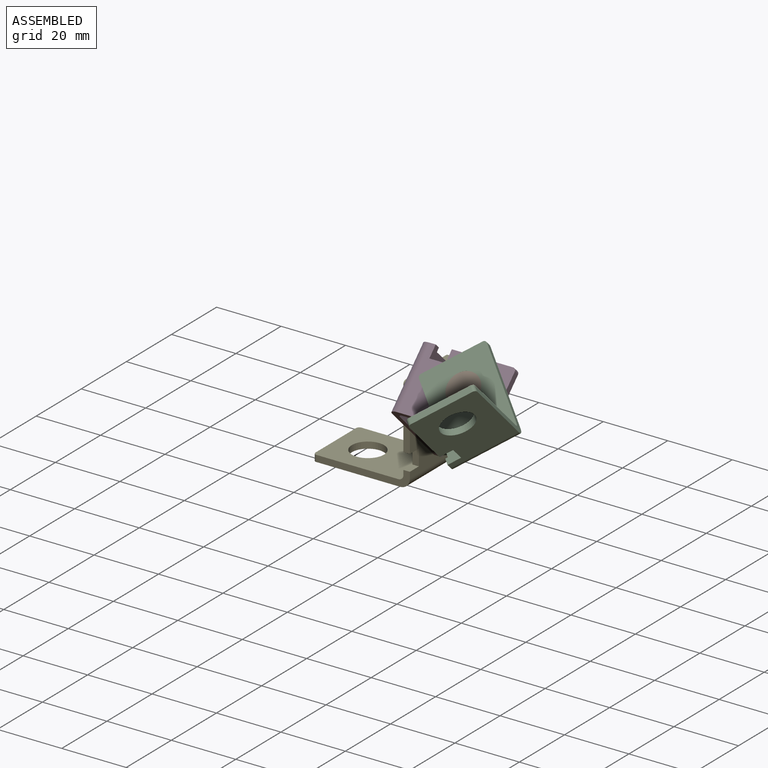
[diagram: assembled view]
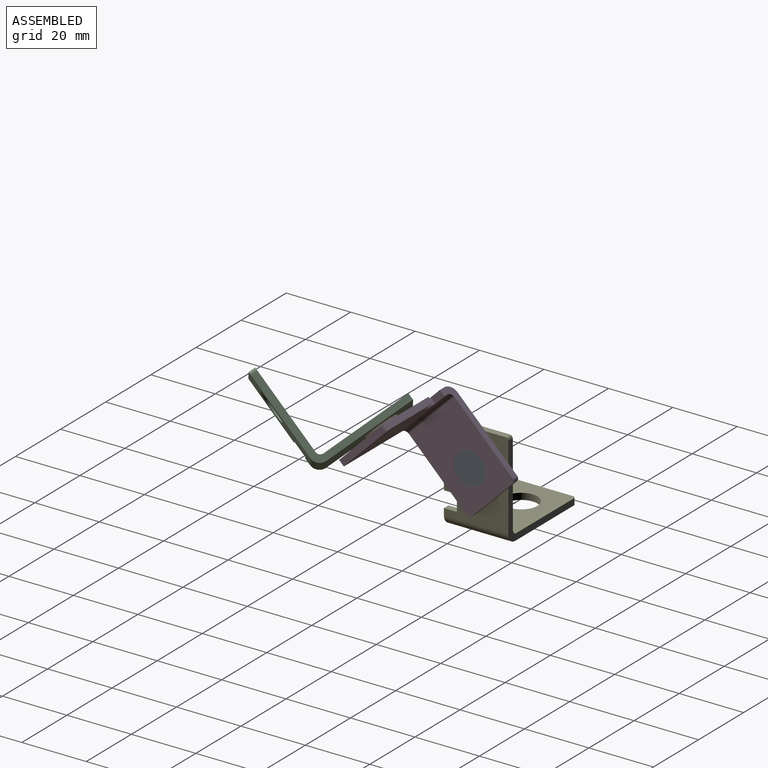
[diagram: assembled view, second angle]
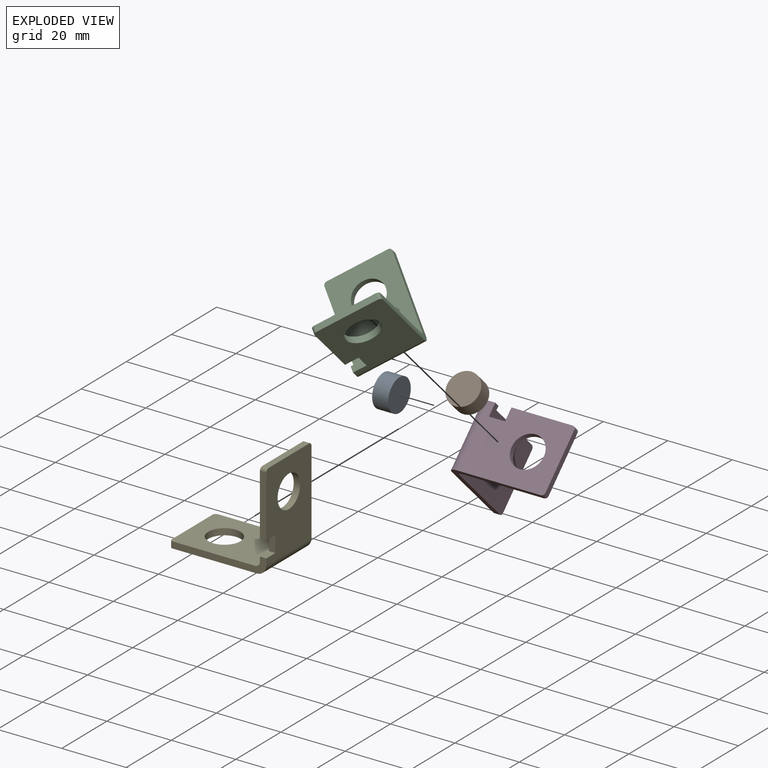
[diagram: exploded view]
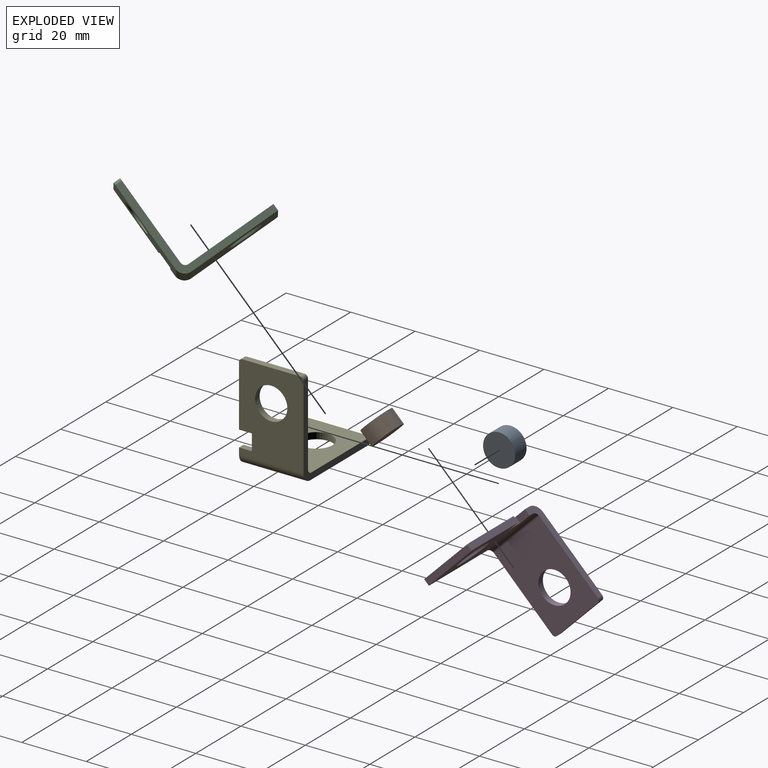
[diagram: exploded view, second angle]
ASSEMBLY  parts=5 mates=4
PART A: 3 faces, bbox 10x5x10 mm
  f0: cylinder r=5mm len=10mm, axis (0,1,0), area 157.1mm2, adj f1,f2
  f1: plane 10x10mm, normal (0,-1,0), area 78.5mm2, adj f0
  f2: plane 10x10mm, normal (0,1,0), area 78.5mm2, adj f0
PART B: same geometry as A
PART C: 20 faces, bbox 30x20x30 mm
  f0: plane 26.5x20mm, normal (-1,0,0), area 431mm2, adj f1,f2,f8,f9,f10,f11,f13,f15
  f1: plane 19x2mm, normal (0,-1,0), area 38mm2, adj f0,f7,f13,f16
  f2: cylinder r=1.5mm len=20mm, axis (0,1,0), area 47.1mm2, adj f0,f3,f9,f10
  f3: plane 26.5x20mm, normal (0,0,1), area 451mm2, adj f2,f4,f9,f10,f12,f14,f19
  f4: plane 18x2mm, normal (-1,0,0), area 36mm2, adj f3,f5,f12,f14
  f5: plane 27x20mm, normal (0,0,-1), area 461mm2, adj f4,f6,f9,f10,f12,f14,f19
  f6: cylinder r=3mm len=20mm, axis (0,1,0), area 94.2mm2, adj f5,f7,f9,f10
  f7: plane 27x20mm, normal (1,0,0), area 441mm2, adj f1,f6,f8,f9,f10,f11,f13,f15
  f8: plane 18x2mm, normal (0,0,1), area 36mm2, adj f0,f7,f11,f13
  f9: plane 29x5mm, normal (0,-1,0), area 62.6mm2, adj f0,f2,f3,f5,f6,f7,f14,f17
  f10: plane 29x29mm, normal (0,1,0), area 110.6mm2, adj f0,f2,f3,f5,f6,f7,f11,f12
  f11: cylinder r=1mm len=2mm, axis (-1,0,0), area 3.1mm2, adj f0,f7,f8,f10
  f12: cylinder r=1mm len=2mm, axis (0,0,-1), area 3.1mm2, adj f3,f4,f5,f10
  f13: cylinder r=1mm len=2mm, axis (1,0,0), area 3.1mm2, adj f0,f1,f7,f8
  f14: cylinder r=1mm len=2mm, axis (0,0,1), area 3.1mm2, adj f3,f4,f5,f9
  f15: plane 5x2mm, normal (0,-1,0), area 10mm2, adj f0,f7,f16,f17
  f16: plane 4x2mm, normal (0,0,-1), area 8mm2, adj f0,f1,f7,f15
  f17: plane 4x2mm, normal (0,0,1), area 8mm2, adj f0,f7,f9,f15
  f18: cylinder r=5mm len=10mm, axis (-1,0,0), area 62.8mm2, adj f0,f7
  f19: cylinder r=5mm len=10mm, axis (0,0,1), area 62.8mm2, adj f3,f5
PART D: same geometry as C
PART E: same geometry as C
PLACE A rot(axis=(0,0,-1),90deg) t=(33,-10,20)mm
PLACE B rot(axis=(-1,0,0),45deg) t=(51,-22.73,32.73)mm
PLACE C rot(axis=(0.68,0.28,-0.68),62.8deg) t=(51,-14.85,44.85)mm
PLACE D rot(axis=(-0.68,0.28,-0.68),148.6deg) t=(31,-10,5.86)mm
PLACE E at identity fixed
MATE revolute C.f19 <-> B.f0  axis (0,-0.71,0.71) through (51,-26.26,36.26)mm
MATE fastened A.f0 <-> E.f18  axis (1,0,0) through (28,-10,20)mm
MATE revolute D.f19 <-> A.f0  axis (1,0,0) through (33,-10,20)mm
MATE fastened D.f18 <-> B.f0  axis (0,0.71,-0.71) through (51,-22.73,32.73)mm
